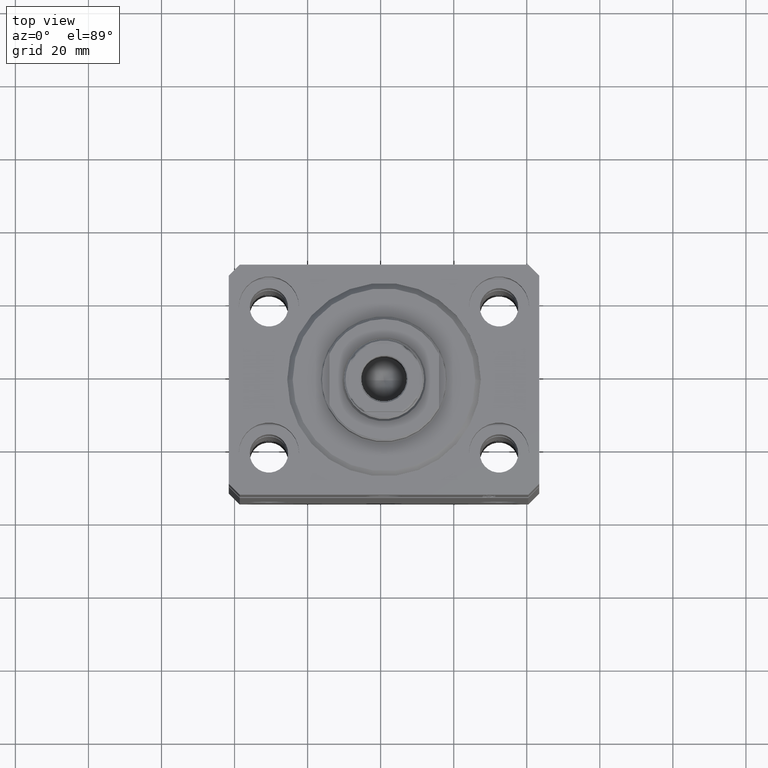
[diagram: clean part render]
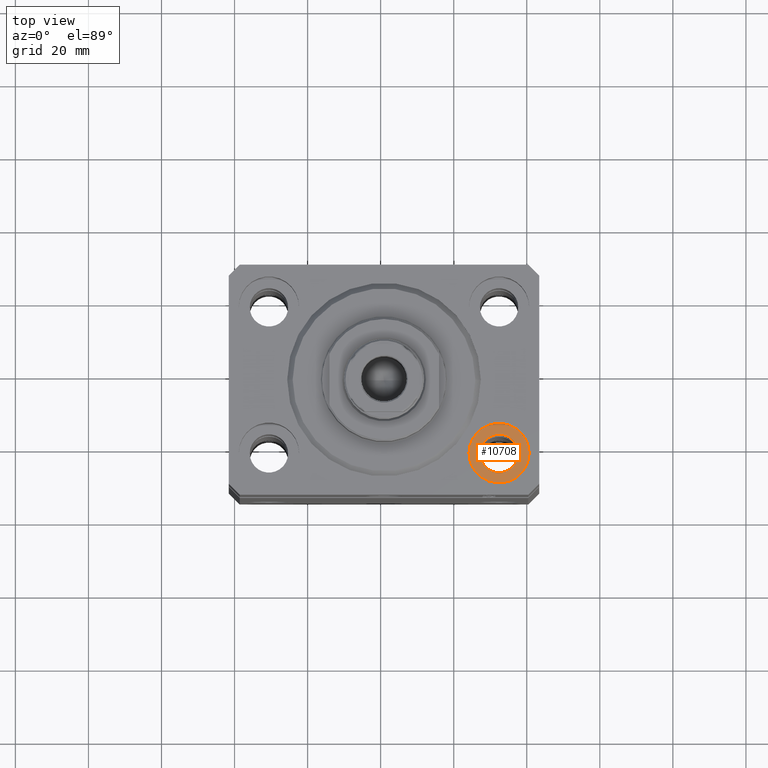
[diagram: same view with one face highlighted and labeled with its STEP entity id]
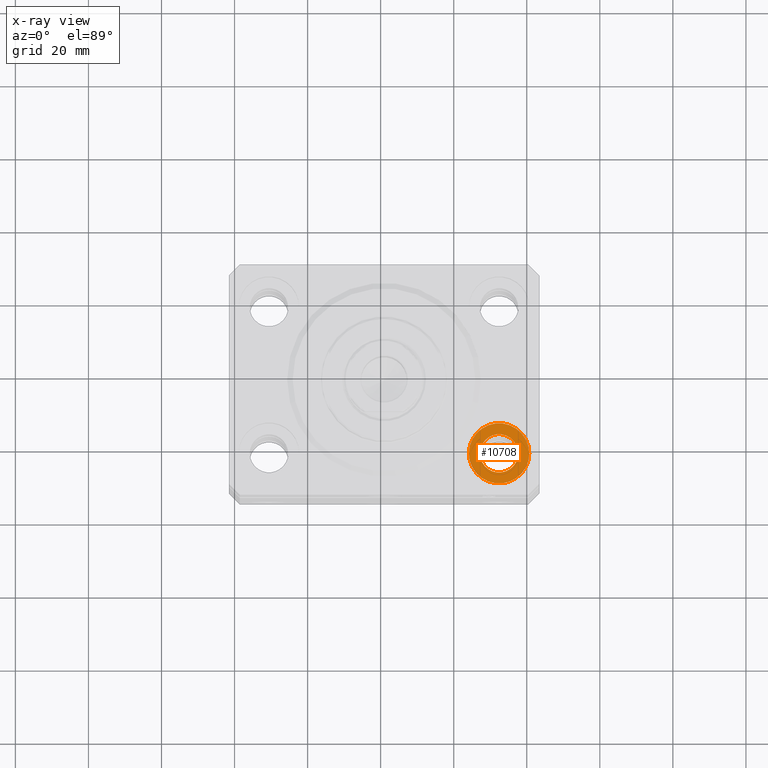
[diagram: x-ray of the same camera — body ghosted, the highlighted face saturated]
A machine part, top view. The second image highlights one B-rep face of the part: STEP entity #10708.
The next image is the same camera in x-ray: the body ghosted, the highlighted face saturated — about 0% of this face is hidden behind the body in this view.
In plain terms, the highlighted planar face has unit normal (0, 0, 1).
Its self-contained STEP definition (entity closure, byte-faithful):
#1845 = DIRECTION ( 'NONE',  ( 1.000000000000000000, 0.000000000000000000, 0.000000000000000000 ) ) ;
#3788 = DIRECTION ( 'NONE',  ( 1.000000000000000000, 0.000000000000000000, 0.000000000000000000 ) ) ;
#5133 = CARTESIAN_POINT ( 'NONE',  ( 31.50000000000000000, -20.00000000000000000, -11.00000000000000000 ) ) ;
#5509 = DIRECTION ( 'NONE',  ( 0.000000000000000000, 0.000000000000000000, 1.000000000000000000 ) ) ;
#7229 = CARTESIAN_POINT ( 'NONE',  ( 31.50000000000000000, -20.00000000000000000, -11.00000000000000000 ) ) ;
#9116 = CIRCLE ( 'NONE', #34729, 5.249999999999997335 ) ;
#10708 = ADVANCED_FACE ( 'NONE', ( #26662, #16368 ), #36536, .T. ) ;
#14525 = VERTEX_POINT ( 'NONE', #24008 ) ;
#15400 = ORIENTED_EDGE ( 'NONE', *, *, #36240, .F. ) ;
#16045 = CIRCLE ( 'NONE', #42403, 5.249999999999997335 ) ;
#16136 = DIRECTION ( 'NONE',  ( 1.000000000000000000, 0.000000000000000000, -0.000000000000000000 ) ) ;
#16368 = FACE_OUTER_BOUND ( 'NONE', #19355, .T. ) ;
#16894 = CARTESIAN_POINT ( 'NONE',  ( 23.25000000000000355, -20.00000000000000000, -11.00000000000000000 ) ) ;
#19269 = EDGE_CURVE ( 'NONE', #20882, #20877, #44222, .T. ) ;
#19355 = EDGE_LOOP ( 'NONE', ( #40737, #31304 ) ) ;
#19969 = EDGE_CURVE ( 'NONE', #20877, #20882, #23737, .T. ) ;
#20334 = CARTESIAN_POINT ( 'NONE',  ( 39.74999999999999289, -20.00000000000000000, -11.00000000000000000 ) ) ;
#20825 = EDGE_CURVE ( 'NONE', #14525, #38875, #9116, .T. ) ;
#20877 = VERTEX_POINT ( 'NONE', #20334 ) ;
#20882 = VERTEX_POINT ( 'NONE', #16894 ) ;
#21228 = DIRECTION ( 'NONE',  ( 0.000000000000000000, 0.000000000000000000, 1.000000000000000000 ) ) ;
#22947 = CARTESIAN_POINT ( 'NONE',  ( 31.50000000000000000, -20.00000000000000000, -11.00000000000000000 ) ) ;
#23737 = CIRCLE ( 'NONE', #31781, 8.249999999999992895 ) ;
#24008 = CARTESIAN_POINT ( 'NONE',  ( 26.25000000000000355, -20.00000000000000000, -11.00000000000000000 ) ) ;
#26070 = DIRECTION ( 'NONE',  ( 0.000000000000000000, 0.000000000000000000, 1.000000000000000000 ) ) ;
#26662 = FACE_BOUND ( 'NONE', #30864, .T. ) ;
#28409 = CARTESIAN_POINT ( 'NONE',  ( 36.75000000000000000, -20.00000000000000000, -11.00000000000000000 ) ) ;
#29450 = AXIS2_PLACEMENT_3D ( 'NONE', #5133, #33098, #16136 ) ;
#30864 = EDGE_LOOP ( 'NONE', ( #15400, #41336 ) ) ;
#31304 = ORIENTED_EDGE ( 'NONE', *, *, #19269, .T. ) ;
#31781 = AXIS2_PLACEMENT_3D ( 'NONE', #22947, #5509, #1845 ) ;
#33098 = DIRECTION ( 'NONE',  ( 0.000000000000000000, 0.000000000000000000, 1.000000000000000000 ) ) ;
#33228 = AXIS2_PLACEMENT_3D ( 'NONE', #36805, #37026, #44592 ) ;
#34729 = AXIS2_PLACEMENT_3D ( 'NONE', #44402, #26070, #43953 ) ;
#36240 = EDGE_CURVE ( 'NONE', #38875, #14525, #16045, .T. ) ;
#36536 = PLANE ( 'NONE',  #29450 ) ;
#36805 = CARTESIAN_POINT ( 'NONE',  ( 31.50000000000000000, -20.00000000000000000, -11.00000000000000000 ) ) ;
#37026 = DIRECTION ( 'NONE',  ( 0.000000000000000000, 0.000000000000000000, 1.000000000000000000 ) ) ;
#38875 = VERTEX_POINT ( 'NONE', #28409 ) ;
#40737 = ORIENTED_EDGE ( 'NONE', *, *, #19969, .T. ) ;
#41336 = ORIENTED_EDGE ( 'NONE', *, *, #20825, .F. ) ;
#42403 = AXIS2_PLACEMENT_3D ( 'NONE', #7229, #21228, #3788 ) ;
#43953 = DIRECTION ( 'NONE',  ( 1.000000000000000000, 0.000000000000000000, 0.000000000000000000 ) ) ;
#44222 = CIRCLE ( 'NONE', #33228, 8.249999999999992895 ) ;
#44402 = CARTESIAN_POINT ( 'NONE',  ( 31.50000000000000000, -20.00000000000000000, -11.00000000000000000 ) ) ;
#44592 = DIRECTION ( 'NONE',  ( 1.000000000000000000, 0.000000000000000000, 0.000000000000000000 ) ) ;